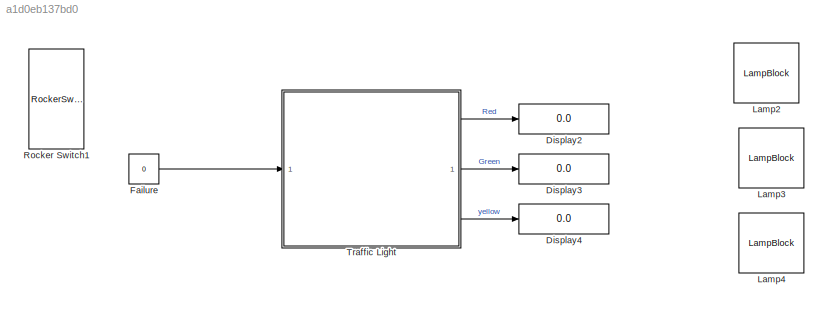
MODEL slx_a1d0eb137bd0
KIND model
CONFIG AbsTol = auto
CONFIG EnableMultiTasking = off
CONFIG FixedStep = 1
CONFIG MaxStep = auto
CONFIG MinStep = auto
CONFIG RelTol = 1e-3
CONFIG SampleTimeConstraint = Unconstrained
CONFIG SolverName = FixedStepDiscrete
CONFIG StartTime = 0.0
CONFIG StopTime = inf
BLOCK [Display] Display2
  Decimation = 1
BLOCK [Display] Display3
  Decimation = 1
BLOCK [Display] Display4
  Decimation = 1
BLOCK [Constant] Failure
  Value = 0
BLOCK [LampBlock] Lamp2
  LabelPosition = Bottom
BLOCK [LampBlock] Lamp3
  LabelPosition = Bottom
BLOCK [LampBlock] Lamp4
  LabelPosition = Bottom
BLOCK [RockerSwitchBlock] Rocker Switch1
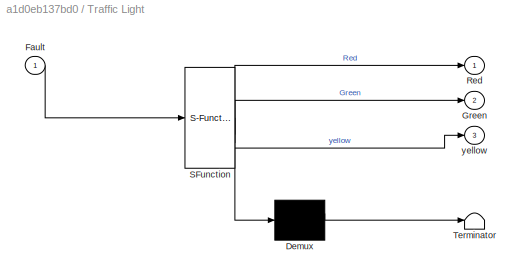
BLOCK [SubSystem] Traffic Light
  ErrorFcn = Stateflow.Translate.translate
  PermitHierarchicalResolution = ExplicitOnly
  SFBlockType = Chart
  TreatAsAtomicUnit = on
BLOCK [Demux] Traffic Light/ Demux 
  Outputs = 1
BLOCK [S-Function] Traffic Light/ SFunction 
  EnableBusSupport = on
  FunctionName = sf_sfun
  PortCounts = [1 4]
  SFcnIsStateOwnerBlock = off
  SFunctionDeploymentMode = off
  Tag = Stateflow S-Function 2
BLOCK [Terminator] Traffic Light/ Terminator 
BLOCK [Inport] Traffic Light/Fault
BLOCK [Outport] Traffic Light/Green
  Port = 2
BLOCK [Outport] Traffic Light/Red
BLOCK [Outport] Traffic Light/yellow
  Port = 3
LINE Failure:1 -> Traffic Light:1
LINE Traffic Light:1 -> Display2:1
LINE Traffic Light:2 -> Display3:1
LINE Traffic Light:3 -> Display4:1
CHART Traffic Light states=7 transitions=10
  STATE_LABEL 'Normal'
  STATE_LABEL 'Preparestop\nen:\nGreen=0;\nRed=0;\nyellow=1;'
  STATE_LABEL 'Stop\nen:\nGreen=0;\nRed=1;\nyellow=0;'
  STATE_LABEL 'GO\nen:\nGreen=1;\nRed=0;\nyellow=0;\n'
  STATE_LABEL 'after(3,sec)'
  STATE_LABEL 'after(4,sec)'
  STATE_LABEL 'after(10,sec)'
  STATE_LABEL 'Preparestop\nen:\nGreen=0;\nRed=0;\nyellow=1;'
  STATE_LABEL 'Stop\nen:\nGreen=0;\nRed=1;\nyellow=0;'
  STATE_LABEL 'GO\nen:\nGreen=1;\nRed=0;\nyellow=0;\n'
  STATE_LABEL 'Fault'
  STATE_LABEL 'LedOn\nen:\nRed=1;\nyellow=0;'
  STATE_LABEL 'LedOff\nen:\nRed=0;'
  STATE_LABEL 'after(1,sec)'
  STATE_LABEL 'after(1,sec)'
  STATE_LABEL 'LedOn\nen:\nRed=1;\nyellow=0;'
  STATE_LABEL 'LedOff\nen:\nRed=0;'
CHART  states=0 transitions=0
